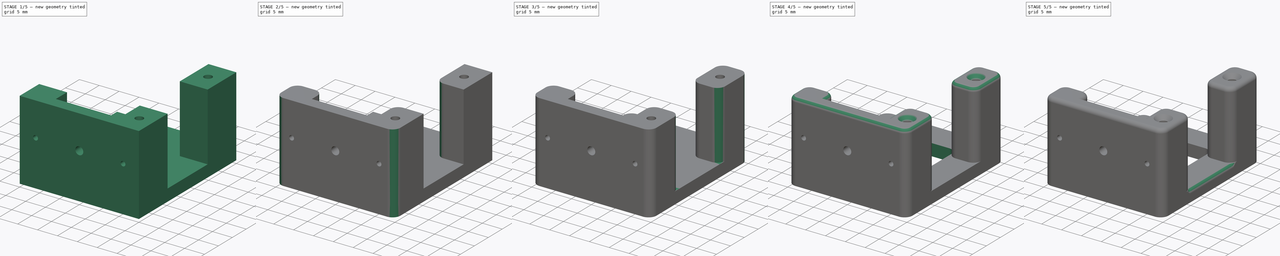
[diagram: build sequence overview — one tinted view per stage of 5, left to right]
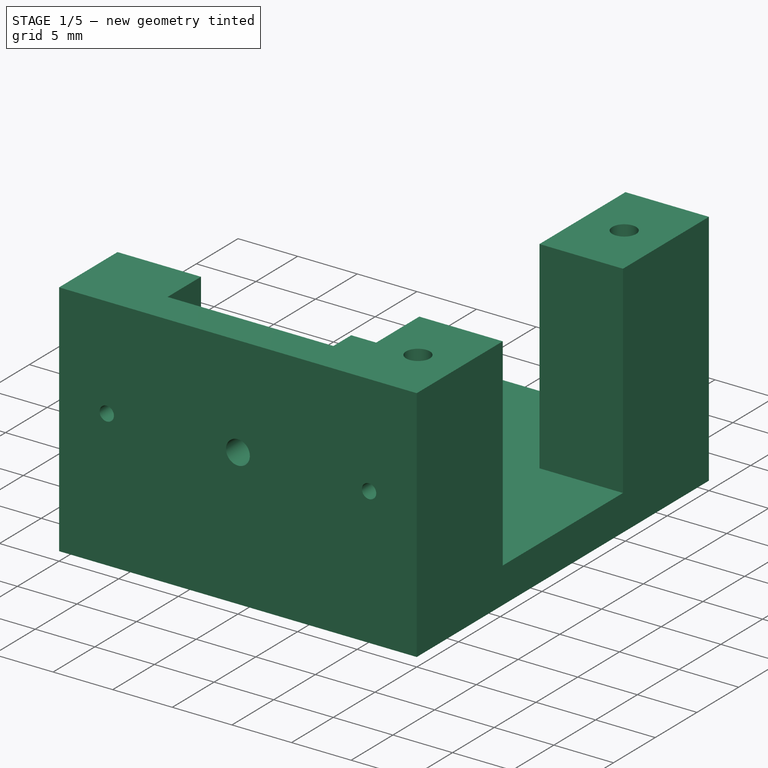
[diagram: stage 1 of 5 — iso view after this stage's code; geometry added in this stage tinted green]
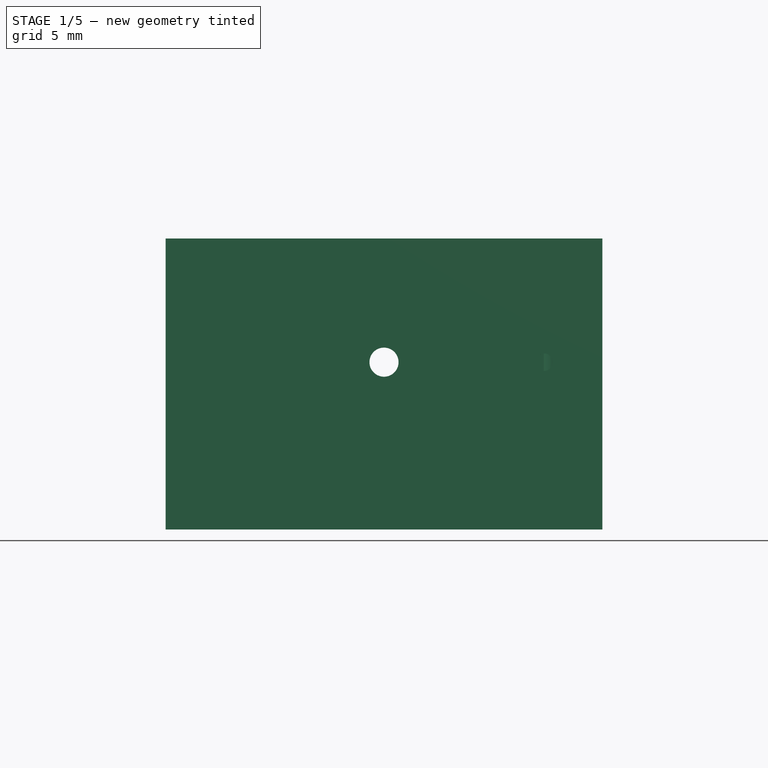
[diagram: stage 1 of 5 — front view after this stage's code; geometry added in this stage tinted green]
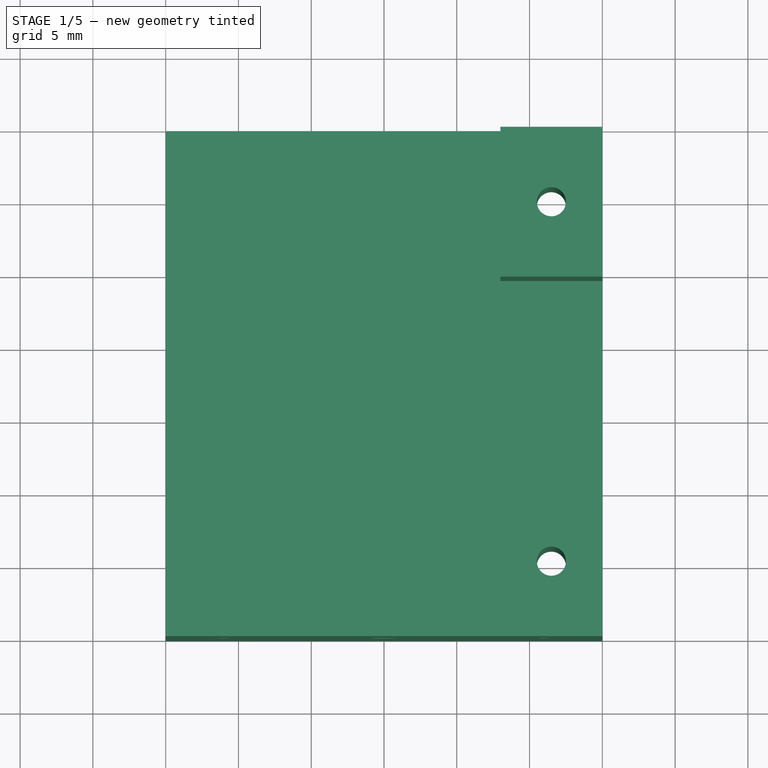
[diagram: stage 1 of 5 — top view after this stage's code; geometry added in this stage tinted green]
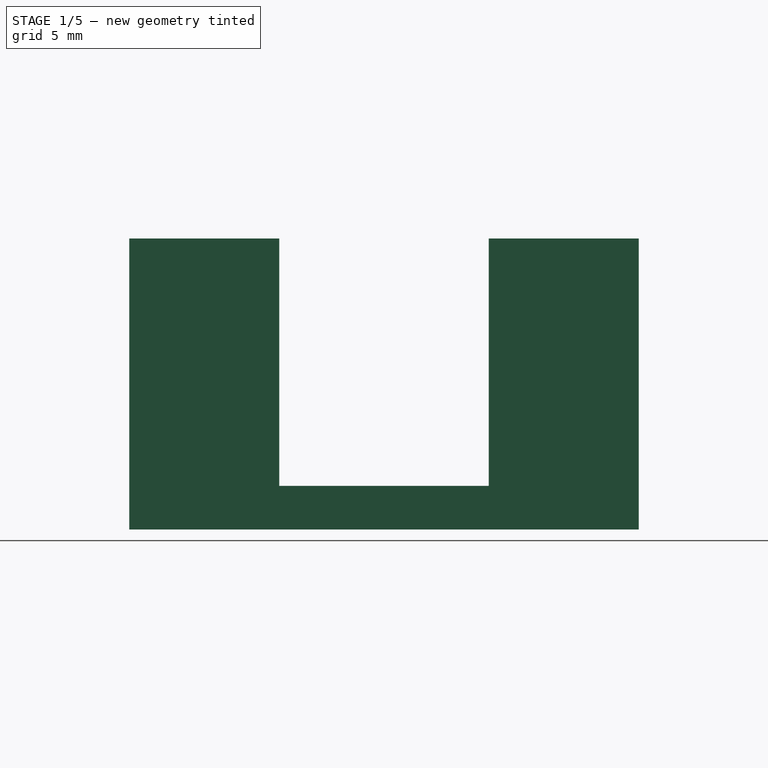
[diagram: stage 1 of 5 — right view after this stage's code; geometry added in this stage tinted green]
FCSTD DOCUMENT  (FreeCAD 0.14R3637 (Git))
Label: halter_buchse
License: CC-BY 3.0
LicenseURL: http://creativecommons.org/licenses/by/3.0/
objects: PartDesign::Fillet×19, Sketcher::SketchObject×6, PartDesign::Pocket×4, PartDesign::Pad×2, PartDesign::Chamfer×2
note: 39 computed .brp shape members not serialized (recipe doc carries the construction recipe); baked Part::Feature solids carry a one-line shape summary decoded from their .brp

FEATURE [Sketcher::SketchObject] Sketch  label="Base"
  sketch-geometry (10):
    g0: LineSegment StartX=0 StartY=0 StartZ=0 EndX=30 EndY=0 EndZ=0
    g1: LineSegment StartX=30 StartY=0 StartZ=0 EndX=30 EndY=35 EndZ=0
    g2: LineSegment StartX=30 StartY=35 StartZ=0 EndX=0 EndY=35 EndZ=0
    g3: LineSegment StartX=0 StartY=35 StartZ=0 EndX=0 EndY=0 EndZ=0
    g4: LineSegment [constr] StartX=26.5 StartY=35 StartZ=0 EndX=26.5 EndY=29.85 EndZ=0
    g5: LineSegment [constr] StartX=26.5 StartY=29.85 StartZ=0 EndX=26.5 EndY=5.15 EndZ=0
    g6: LineSegment [constr] StartX=26.5 StartY=5.15 StartZ=0 EndX=26.5 EndY=0 EndZ=0
    g7: LineSegment [constr] StartX=26.5 StartY=5.15 StartZ=0 EndX=30 EndY=5.15 EndZ=0
    g8: Circle CenterX=26.5 CenterY=29.85 CenterZ=0 NormalX=0 NormalY=0 NormalZ=1 Radius=1
    g9: Circle CenterX=26.5 CenterY=5.15 CenterZ=0 NormalX=0 NormalY=0 NormalZ=1 Radius=1
  constraints (28):
    c: Coincident(g0,g1)
    c: Coincident(g1,g2)
    c: Coincident(g2,g3)
    c: Coincident(g3,g0)
    c: Horizontal(g0)
    c: Horizontal(g2)
    c: Vertical(g1)
    c: Vertical(g3)
    c: DistanceY(g1) = 35
    c: Coincident(g0,g-1)
    c: Coincident(g4,g5)
    c: Vertical(g5)
    c: Coincident(g5,g6)
    c: Coincident(g5,g7)
    c: PointOnObject(g7,g1)
    c: PointOnObject(g6,g0)
    c: PointOnObject(g4,g2)
    c: Equal(g4,g6)
    c: Horizontal(g7)
    c: Vertical(g4)
    c: Vertical(g6)
    c: DistanceY(g5) = -24.7
    c: Coincident(g8,g4)
    c: Coincident(g9,g5)
    c: Radius(g9) = 1
    c: Radius(g8) = 1
    c: DistanceX(g7) = 3.5
    c: DistanceX(g2) = -30
FEATURE [PartDesign::Pad] Pad
  Length = 3
  Length2 = 100
  Sketch = -> Sketch
  Type = 0
FEATURE [Sketcher::SketchObject] Sketch001  label="Abstandshalter"
  ExternalGeometry = -> [Pad]
  Placement = pos=(0,0,3) rot=(0,0,1;0rad)
  Support = -> Pad [Face8]
  sketch-geometry (25):
    g0: LineSegment StartX=23 StartY=35 StartZ=0 EndX=30 EndY=35 EndZ=0
    g1: LineSegment StartX=30 StartY=35 StartZ=0 EndX=30 EndY=24.7 EndZ=0
    g2: LineSegment StartX=30 StartY=24.7 StartZ=0 EndX=23 EndY=24.7 EndZ=0
    g3: LineSegment StartX=23 StartY=24.7 StartZ=0 EndX=23 EndY=35 EndZ=0
    g4: LineSegment [constr] StartX=26.5 StartY=35 StartZ=0 EndX=26.5 EndY=29.85 EndZ=0
    g5: LineSegment [constr] StartX=26.5 StartY=29.85 StartZ=0 EndX=26.5 EndY=24.7 EndZ=0
    g6: LineSegment [constr] StartX=23 StartY=29.85 StartZ=0 EndX=26.5 EndY=29.85 EndZ=0
    g7: LineSegment [constr] StartX=26.5 StartY=29.85 StartZ=0 EndX=30 EndY=29.85 EndZ=0
    g8: LineSegment StartX=23 StartY=10.3 StartZ=0 EndX=30 EndY=10.3 EndZ=0
    g9: LineSegment StartX=30 StartY=10.3 StartZ=0 EndX=30 EndY=0 EndZ=0
    g10: LineSegment StartX=30 StartY=0 StartZ=0 EndX=23 EndY=0 EndZ=0
    g11: LineSegment [constr] StartX=26.5 StartY=10.3 StartZ=0 EndX=26.5 EndY=5.15 EndZ=0
    g12: LineSegment [constr] StartX=26.5 StartY=5.15 StartZ=0 EndX=26.5 EndY=0 EndZ=0
    g13: LineSegment [constr] StartX=23 StartY=5.15 StartZ=0 EndX=26.5 EndY=5.15 EndZ=0
    g14: LineSegment [constr] StartX=26.5 StartY=5.15 StartZ=0 EndX=30 EndY=5.15 EndZ=0
    g15: Circle CenterX=26.5 CenterY=29.85 CenterZ=0 NormalX=0 NormalY=0 NormalZ=1 Radius=1
    g16: Circle CenterX=26.5 CenterY=5.15 CenterZ=0 NormalX=0 NormalY=0 NormalZ=1 Radius=1
    g17: LineSegment StartX=7 StartY=7 StartZ=0 EndX=0 EndY=7 EndZ=0
    g18: LineSegment StartX=0 StartY=7 StartZ=0 EndX=0 EndY=0 EndZ=0
    g19: LineSegment StartX=0 StartY=0 StartZ=0 EndX=7 EndY=0 EndZ=0
    g20: LineSegment StartX=7 StartY=0 StartZ=0 EndX=23 EndY=0 EndZ=0
    g21: LineSegment StartX=23 StartY=3 StartZ=0 EndX=7 EndY=3 EndZ=0
    g22: LineSegment StartX=7 StartY=7 StartZ=0 EndX=7 EndY=3 EndZ=0
    g23: LineSegment StartX=23 StartY=10.3 StartZ=0 EndX=23 EndY=3 EndZ=0
    g24: LineSegment [constr] StartX=7 StartY=3 StartZ=0 EndX=7 EndY=0 EndZ=0
  constraints (69):
    c: Coincident(g0,g1)
    c: Coincident(g1,g2)
    c: Coincident(g2,g3)
    c: Coincident(g3,g0)
    c: Horizontal(g0)
    c: Horizontal(g2)
    c: Vertical(g1)
    c: Vertical(g3)
    c: Coincident(g4,g5)
    c: Coincident(g4,g-4)
    c: PointOnObject(g4,g0)
    c: PointOnObject(g5,g2)
    c: Coincident(g6,g7)
    c: PointOnObject(g7,g1)
    c: PointOnObject(g6,g3)
    c: Coincident(g6,g4)
    c: Vertical(g4)
    c: Vertical(g5)
    c: Horizontal(g6)
    c: Horizontal(g7)
    c: Equal(g6,g7)
    c: Equal(g4,g5)
    c: Coincident(g0,g-3)
    c: Coincident(g8,g9)
    c: Coincident(g9,g10)
    c: Horizontal(g8)
    c: Horizontal(g10)
    c: Vertical(g9)
    c: Coincident(g11,g12)
    c: Coincident(g13,g14)
    c: Coincident(g13,g11)
    c: Vertical(g11)
    c: Vertical(g12)
    c: Horizontal(g13)
    c: Horizontal(g14)
    c: Coincident(g11,g-5)
    c: PointOnObject(g11,g8)
    c: PointOnObject(g12,g10)
    c: PointOnObject(g14,g9)
    c: Equal(g11,g12)
    c: Equal(g13,g14)
    c: Coincident(g9,g-3)
    c: Coincident(g15,g4)
    c: Radius(g15) = 1
    c: Coincident(g16,g11)
    c: Radius(g16) = 1
    c: Coincident(g17,g18)
    c: Coincident(g18,g19)
    c: Horizontal(g17)
    c: Horizontal(g19)
    c: Vertical(g18)
    c: Equal(g17,g8)
    c: Coincident(g18,g-1)
    c: Horizontal(g20)
    c: Horizontal(g21)
    c: Coincident(g20,g19)
    c: Coincident(g20,g10)
    c: Coincident(g23,g8)
    c: Coincident(g23,g21)
    c: Vertical(g23)
    c: PointOnObject(g13,g23)
    c: Coincident(g22,g21)
    c: Coincident(g22,g17)
    c: Vertical(g22)
    c: Equal(g18,g17)
    c: Coincident(g24,g19)
    c: Coincident(g24,g21)
    c: Vertical(g24)
    c: DistanceY(g24) = -3
FEATURE [PartDesign::Pad] Pad001
  Length = 17
  Length2 = 100
  Sketch = -> Sketch001
  Type = 0
FEATURE [Sketcher::SketchObject] Sketch002  label="DIN_Center"
  ExternalGeometry = -> [Pad001]
  Placement = pos=(0,0,0) rot=(1,0,0;1.5708rad)
  Support = -> Pad001 [Face9]
  sketch-geometry (5):
    g0: LineSegment [constr] StartX=7 StartY=20 StartZ=0 EndX=15 EndY=11.5 EndZ=0
    g1: LineSegment [constr] StartX=15 StartY=11.5 StartZ=0 EndX=23 EndY=3 EndZ=0
    g2: LineSegment [constr] StartX=7 StartY=3 StartZ=0 EndX=15 EndY=11.5 EndZ=0
    g3: LineSegment [constr] StartX=15 StartY=11.5 StartZ=0 EndX=23 EndY=20 EndZ=0
    g4: Circle CenterX=15 CenterY=11.5 CenterZ=0 NormalX=0 NormalY=0 NormalZ=1 Radius=1
  constraints (11):
    c: Coincident(g0,g1)
    c: Coincident(g2,g3)
    c: Coincident(g2,g0)
    c: Coincident(g0,g-3)
    c: Coincident(g3,g-4)
    c: Coincident(g1,g-4)
    c: Coincident(g2,g-3)
    c: Equal(g3,g2)
    c: Equal(g0,g1)
    c: Coincident(g4,g0)
    c: Radius(g4) = 1
FEATURE [PartDesign::Pocket] Pocket
  Length = 3
  Sketch = -> Sketch002
  Type = 0
FEATURE [Sketcher::SketchObject] Sketch003  label="din_links"
  Placement = pos=(0,0,0) rot=(1,0,0;1.5708rad)
  Support = -> Pocket [Face2]
  sketch-geometry (5):
    g0: LineSegment [constr] StartX=7 StartY=20 StartZ=0 EndX=7 EndY=11.5 EndZ=0
    g1: LineSegment [constr] StartX=7 StartY=11.5 StartZ=0 EndX=7 EndY=3 EndZ=0
    g2: LineSegment [constr] StartX=4 StartY=11.5 StartZ=0 EndX=7 EndY=11.5 EndZ=0
    g3: LineSegment [constr] StartX=4 StartY=11.5 StartZ=0 EndX=0 EndY=11.5 EndZ=0
    g4: Circle CenterX=4 CenterY=11.5 CenterZ=0 NormalX=0 NormalY=0 NormalZ=1 Radius=0.6
  constraints (11):
    c: Coincident(g0,g1)
    c: Vertical(g0)
    c: Vertical(g1)
    c: Coincident(g2,g0)
    c: Horizontal(g2)
    c: Equal(g1,g0)
    c: Coincident(g3,g2)
    c: Horizontal(g3)
    c: Coincident(g4,g2)
    c: Radius(g4) = 0.6
    c: DistanceX(g2) = 3
FEATURE [PartDesign::Pocket] Pocket001
  Length = 6
  Sketch = -> Sketch003
  Type = 0
FEATURE [Sketcher::SketchObject] Sketch004  label="din_rechts"
  Placement = pos=(0,0,0) rot=(1,0,0;1.5708rad)
  Support = -> Pocket001 [Face2]
  sketch-geometry (5):
    g0: LineSegment [constr] StartX=23 StartY=20 StartZ=0 EndX=23 EndY=11.5 EndZ=0
    g1: LineSegment [constr] StartX=23 StartY=11.5 StartZ=0 EndX=23 EndY=3 EndZ=0
    g2: LineSegment [constr] StartX=23 StartY=11.5 StartZ=0 EndX=26 EndY=11.5 EndZ=0
    g3: LineSegment [constr] StartX=26 StartY=11.5 StartZ=0 EndX=30 EndY=11.5 EndZ=0
    g4: Circle CenterX=26 CenterY=11.5 CenterZ=0 NormalX=0 NormalY=0 NormalZ=1 Radius=0.6
  constraints (11):
    c: Coincident(g0,g1)
    c: Coincident(g2,g0)
    c: Vertical(g1)
    c: Vertical(g0)
    c: Equal(g0,g1)
    c: Horizontal(g2)
    c: Coincident(g3,g2)
    c: Horizontal(g3)
    c: DistanceX(g2) = 3
    c: Radius(g4) = 0.6
    c: Coincident(g4,g2)
FEATURE [PartDesign::Pocket] Pocket002
  Length = 6
  Sketch = -> Sketch004
  Type = 0
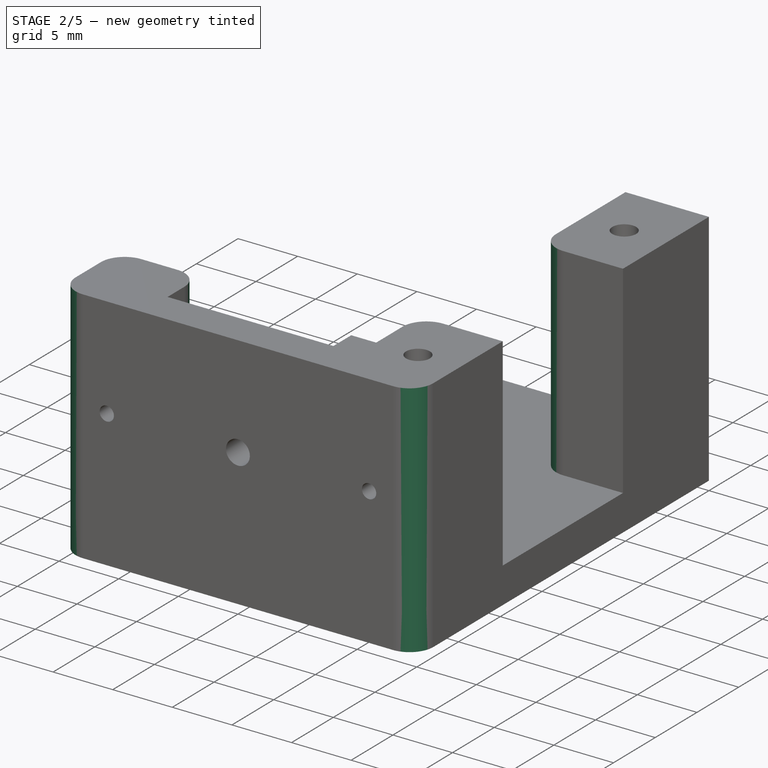
[diagram: stage 2 of 5 — iso view after this stage's code; geometry added in this stage tinted green]
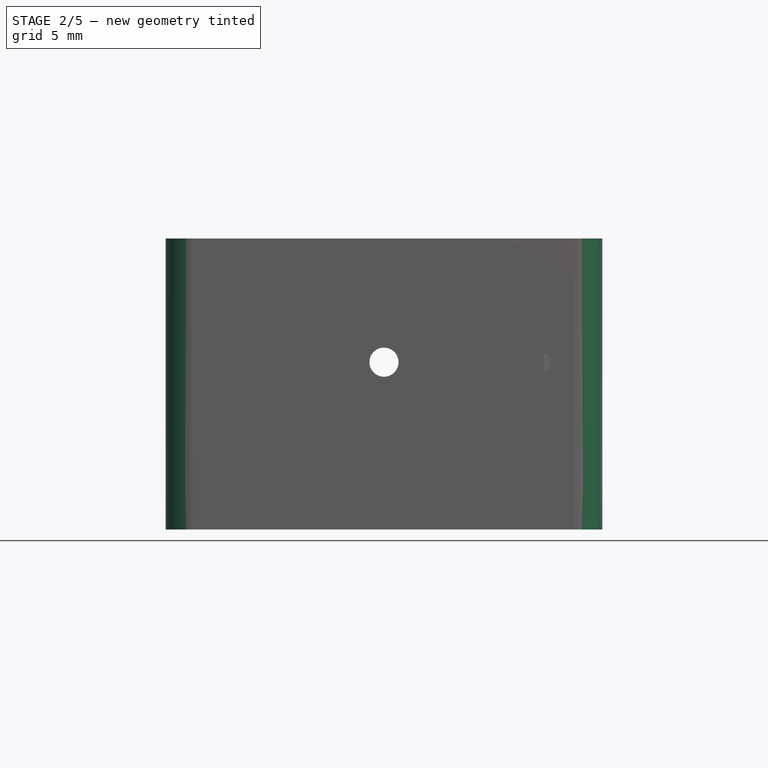
[diagram: stage 2 of 5 — front view after this stage's code; geometry added in this stage tinted green]
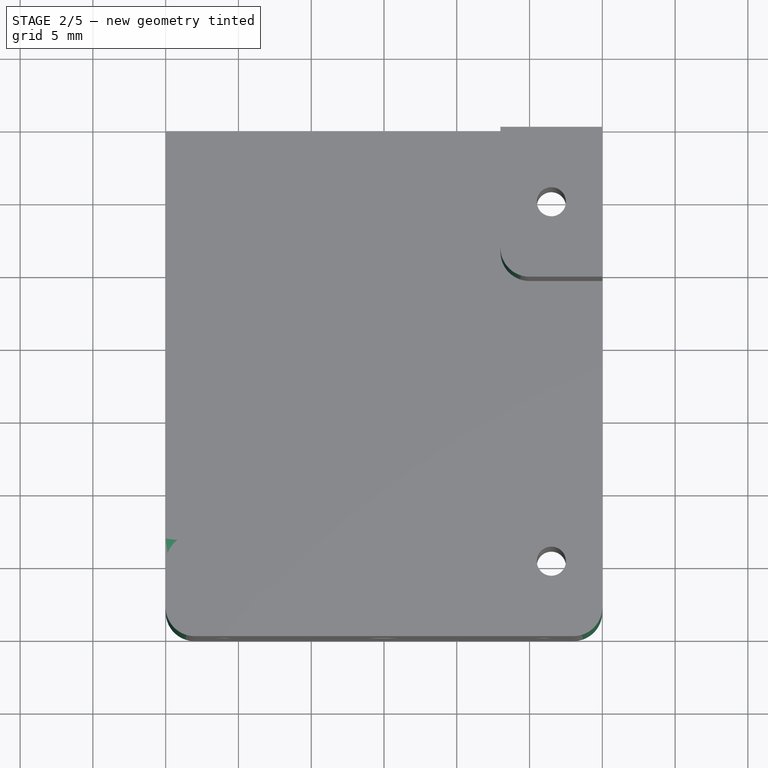
[diagram: stage 2 of 5 — top view after this stage's code; geometry added in this stage tinted green]
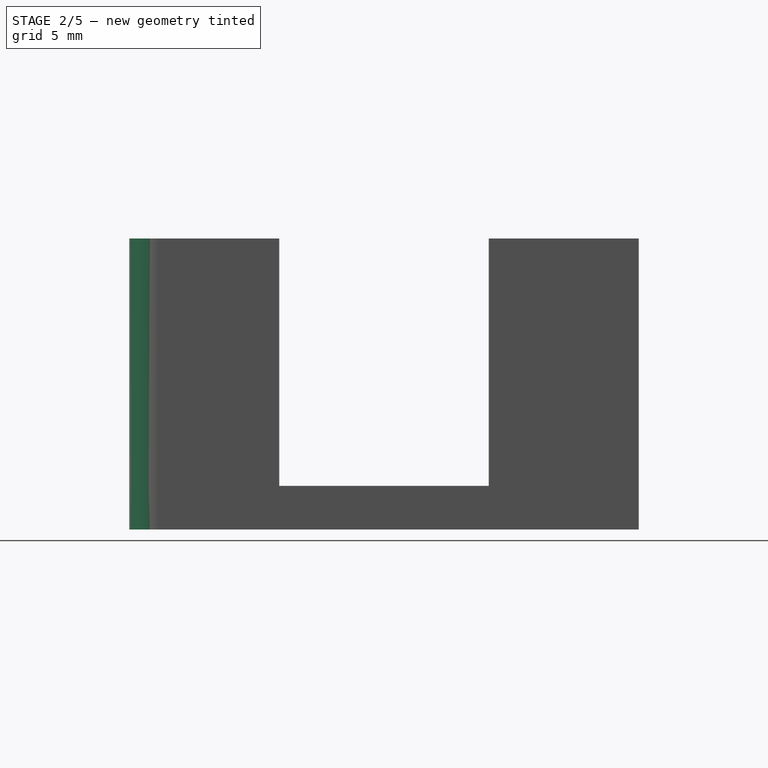
[diagram: stage 2 of 5 — right view after this stage's code; geometry added in this stage tinted green]
FEATURE [PartDesign::Fillet] Fillet
  Base = -> Pocket002 [Edge32]
  Radius = 2
FEATURE [PartDesign::Fillet] Fillet001
  Base = -> Fillet [Edge32]
  Radius = 2
FEATURE [PartDesign::Fillet] Fillet002
  Base = -> Fillet001 [Edge45]
  Radius = 2
FEATURE [PartDesign::Fillet] Fillet003
  Base = -> Fillet002 [Edge46]
  Radius = 2
FEATURE [PartDesign::Fillet] Fillet004
  Base = -> Fillet003 [Edge30]
  Radius = 2
FEATURE [PartDesign::Fillet] Fillet005
  Base = -> Fillet004 [Edge36]
  Radius = 2
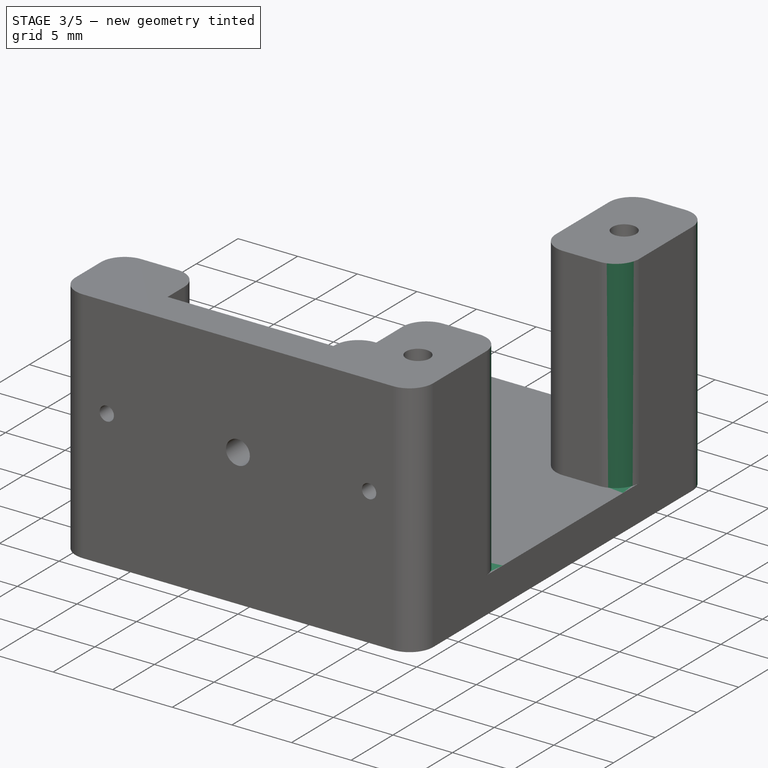
[diagram: stage 3 of 5 — iso view after this stage's code; geometry added in this stage tinted green]
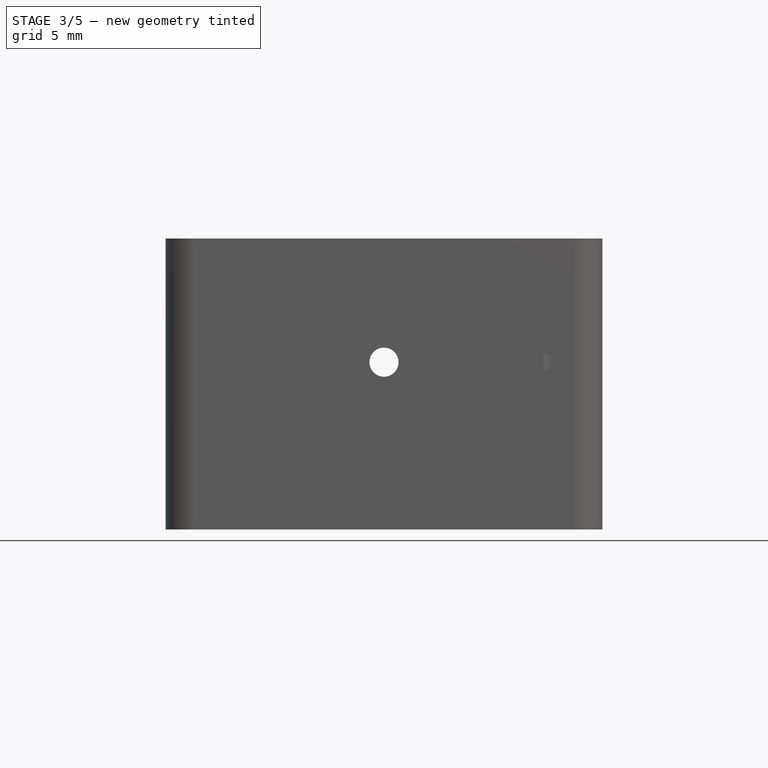
[diagram: stage 3 of 5 — front view after this stage's code; geometry added in this stage tinted green]
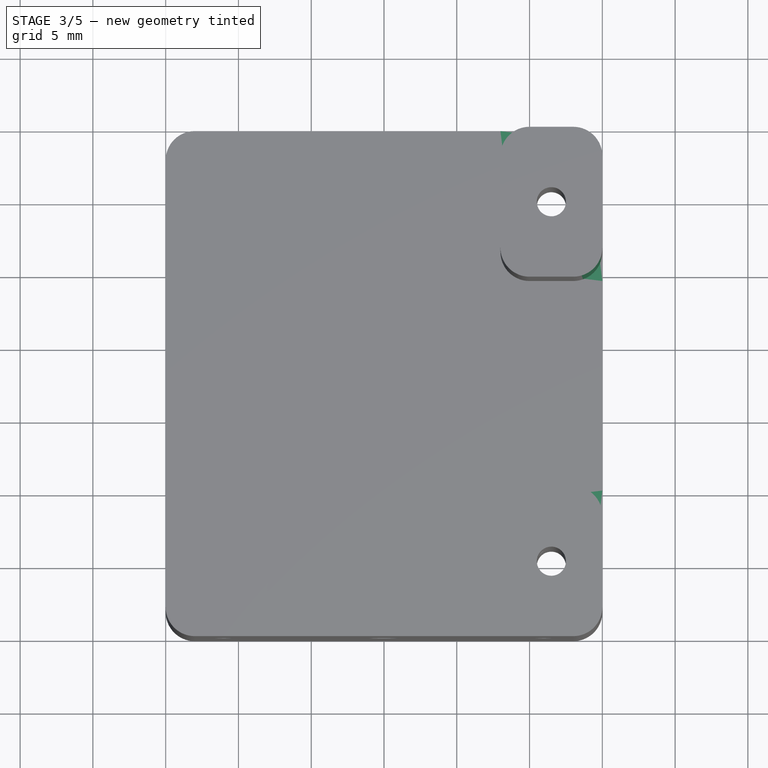
[diagram: stage 3 of 5 — top view after this stage's code; geometry added in this stage tinted green]
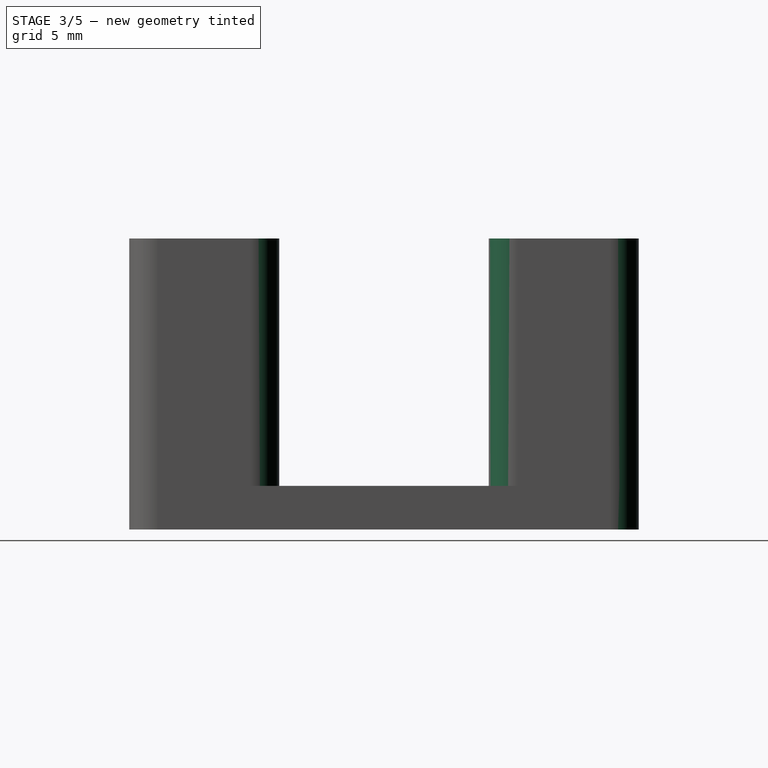
[diagram: stage 3 of 5 — right view after this stage's code; geometry added in this stage tinted green]
FEATURE [PartDesign::Fillet] Fillet006
  Base = -> Fillet005 [Edge33]
  Radius = 2
FEATURE [PartDesign::Fillet] Fillet007
  Base = -> Fillet006 [Edge24]
  Radius = 2
FEATURE [PartDesign::Fillet] Fillet008
  Base = -> Fillet007 [Edge62]
  Radius = 2
FEATURE [PartDesign::Fillet] Fillet009
  Base = -> Fillet008 [Edge52]
  Radius = 2
FEATURE [PartDesign::Fillet] Fillet010
  Base = -> Fillet009 [Edge38]
  Radius = 2
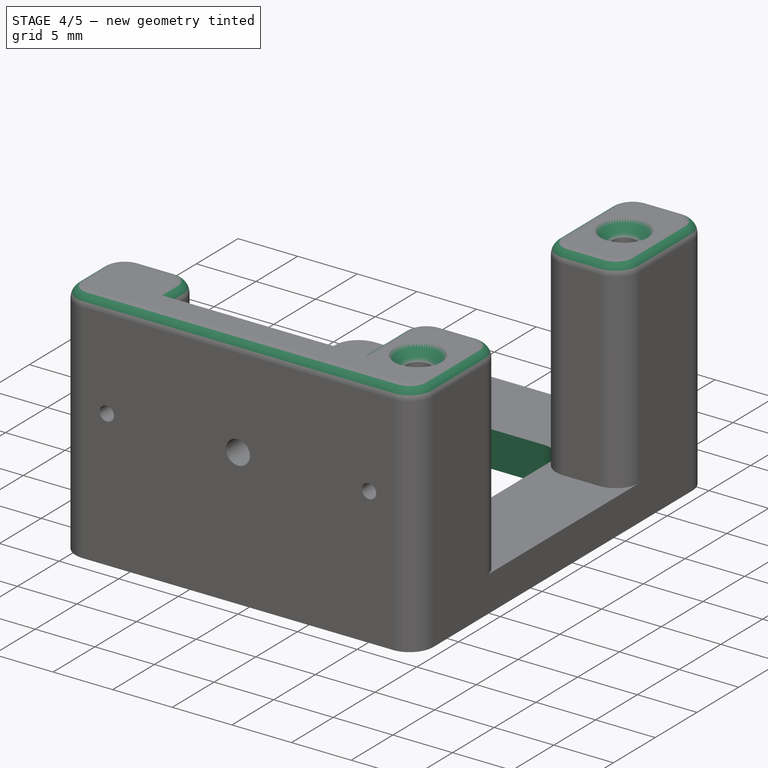
[diagram: stage 4 of 5 — iso view after this stage's code; geometry added in this stage tinted green]
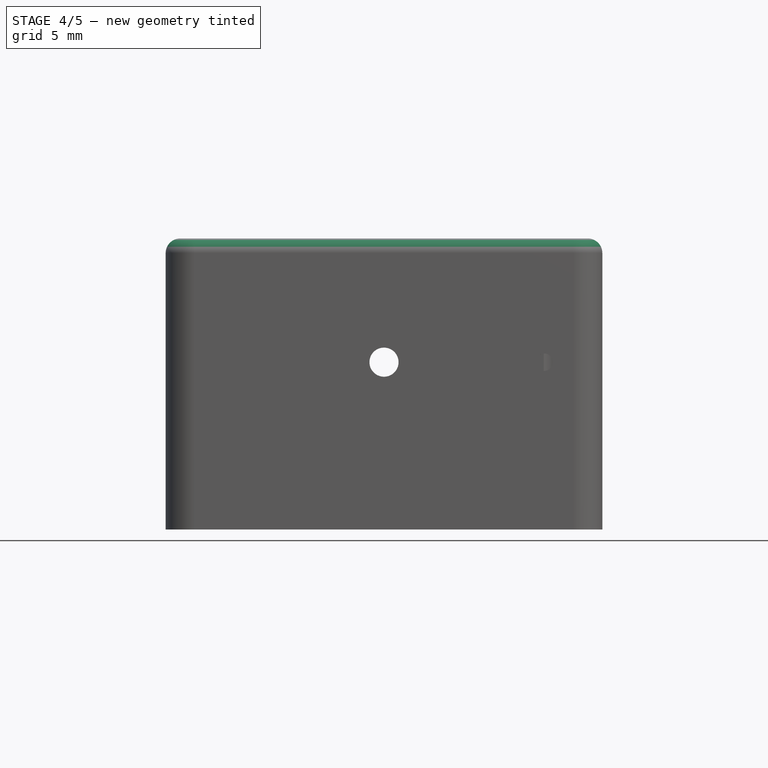
[diagram: stage 4 of 5 — front view after this stage's code; geometry added in this stage tinted green]
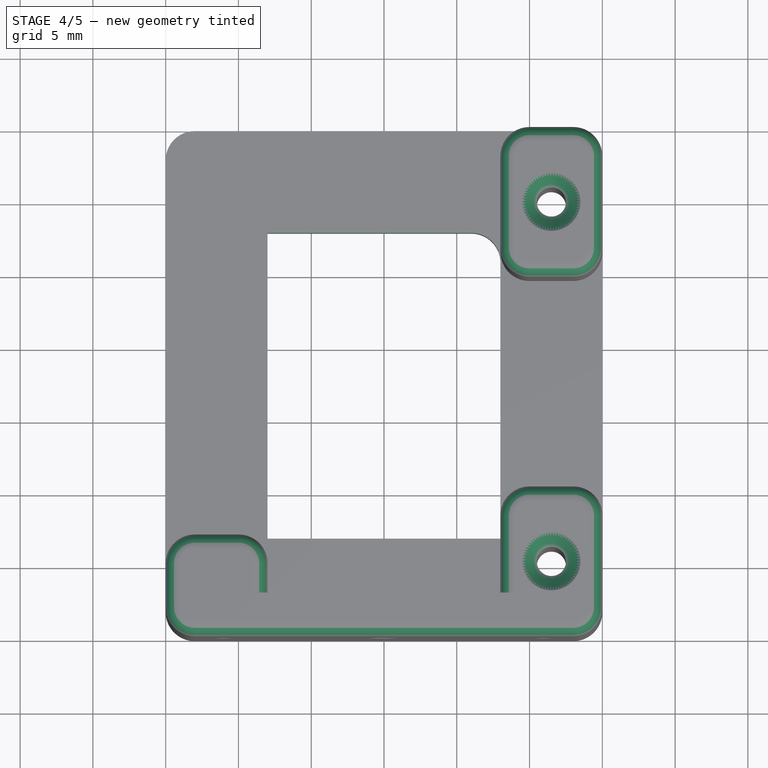
[diagram: stage 4 of 5 — top view after this stage's code; geometry added in this stage tinted green]
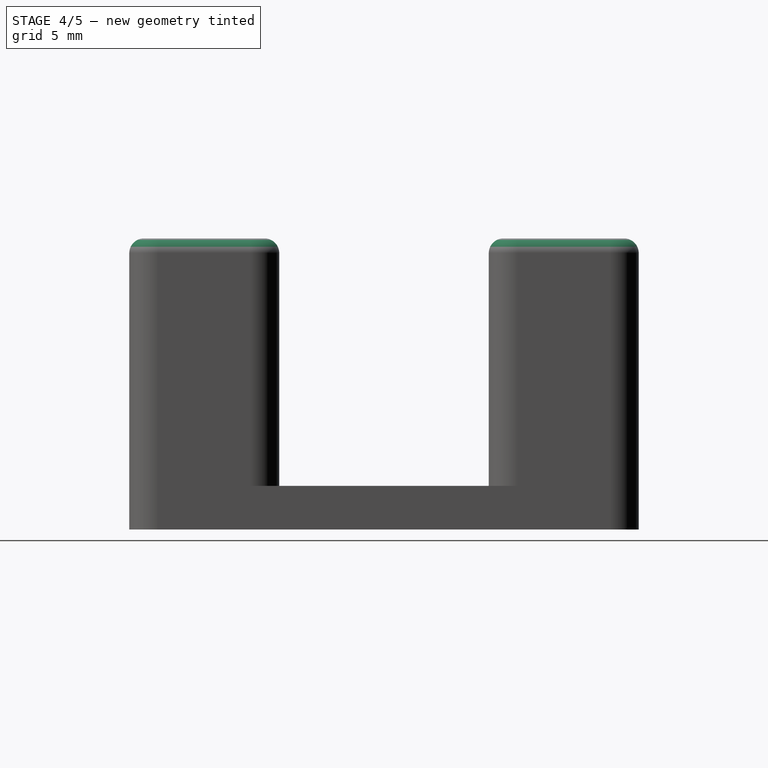
[diagram: stage 4 of 5 — right view after this stage's code; geometry added in this stage tinted green]
FEATURE [PartDesign::Chamfer] Chamfer
  Base = -> Fillet010 [Edge75]
  Size = 1
FEATURE [PartDesign::Chamfer] Chamfer001
  Base = -> Chamfer [Edge118]
  Size = 1
FEATURE [PartDesign::Fillet] Fillet011
  Base = -> Chamfer001 [Edge94]
  Radius = 1
FEATURE [PartDesign::Fillet] Fillet012
  Base = -> Fillet011 [Edge75]
  Radius = 1
FEATURE [Sketcher::SketchObject] Sketch005  label="ausschnitt"
  ExternalGeometry = -> [Fillet012]
  Placement = pos=(0,0,0) rot=(1,0,0;3.14159rad)
  Support = -> Fillet012 [Face13]
  sketch-geometry (8):
    g0: LineSegment StartX=7 StartY=-28 StartZ=0 EndX=23 EndY=-28 EndZ=0
    g1: LineSegment StartX=23 StartY=-28 StartZ=0 EndX=23 EndY=-7 EndZ=0
    g2: LineSegment StartX=23 StartY=-7 StartZ=0 EndX=7 EndY=-7 EndZ=0
    g3: LineSegment StartX=7 StartY=-7 StartZ=0 EndX=7 EndY=-28 EndZ=0
    g4: LineSegment [constr] StartX=23 StartY=-7 StartZ=0 EndX=30 EndY=-7 EndZ=0
    g5: LineSegment [constr] StartX=7 StartY=-28 StartZ=0 EndX=0 EndY=-28 EndZ=0
    g6: LineSegment [constr] StartX=7 StartY=-28 StartZ=0 EndX=7 EndY=-35 EndZ=0
    g7: LineSegment [constr] StartX=7 StartY=-7 StartZ=0 EndX=7 EndY=0 EndZ=0
  constraints (24):
    c: Coincident(g0,g1)
    c: Coincident(g1,g2)
    c: Coincident(g2,g3)
    c: Coincident(g3,g0)
    c: Horizontal(g0)
    c: Horizontal(g2)
    c: Vertical(g1)
    c: Vertical(g3)
    c: Coincident(g4,g1)
    c: PointOnObject(g4,g-3)
    c: Horizontal(g4)
    c: DistanceX(g4) = 7
    c: PointOnObject(g5,g-4)
    c: Coincident(g5,g0)
    c: Horizontal(g5)
    c: Coincident(g6,g0)
    c: PointOnObject(g6,g-6)
    c: Coincident(g7,g2)
    c: PointOnObject(g7,g-5)
    c: DistanceY(g6) = -7
    c: Vertical(g6)
    c: DistanceX(g5) = -7
    c: Vertical(g7)
    c: DistanceY(g7) = 7
FEATURE [PartDesign::Pocket] Pocket003
  Length = 3
  Sketch = -> Sketch005
  Type = 0
FEATURE [PartDesign::Fillet] Fillet013
  Base = -> Pocket003 [Edge66]
  Radius = 2
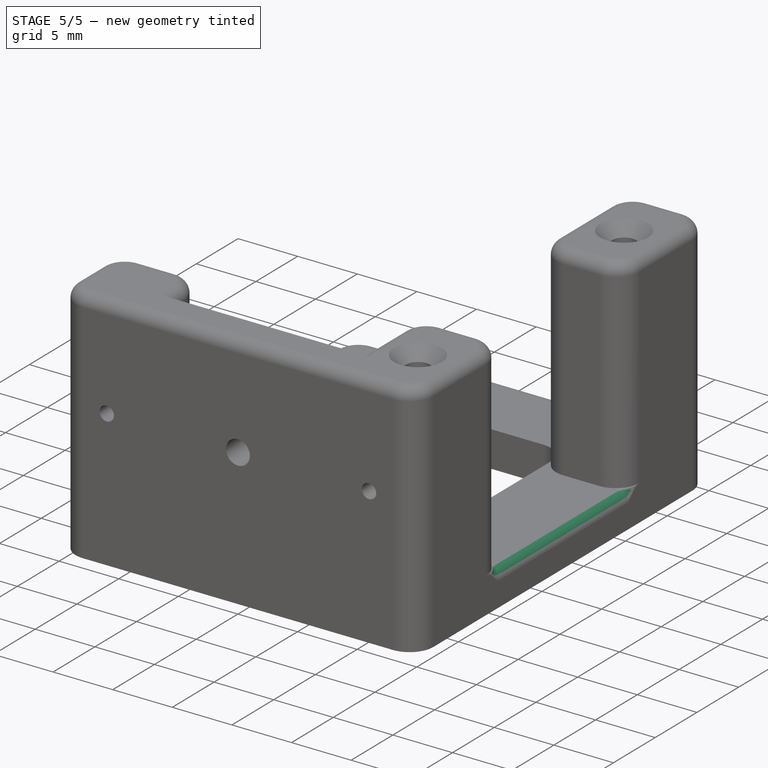
[diagram: stage 5 of 5 — iso view after this stage's code; geometry added in this stage tinted green]
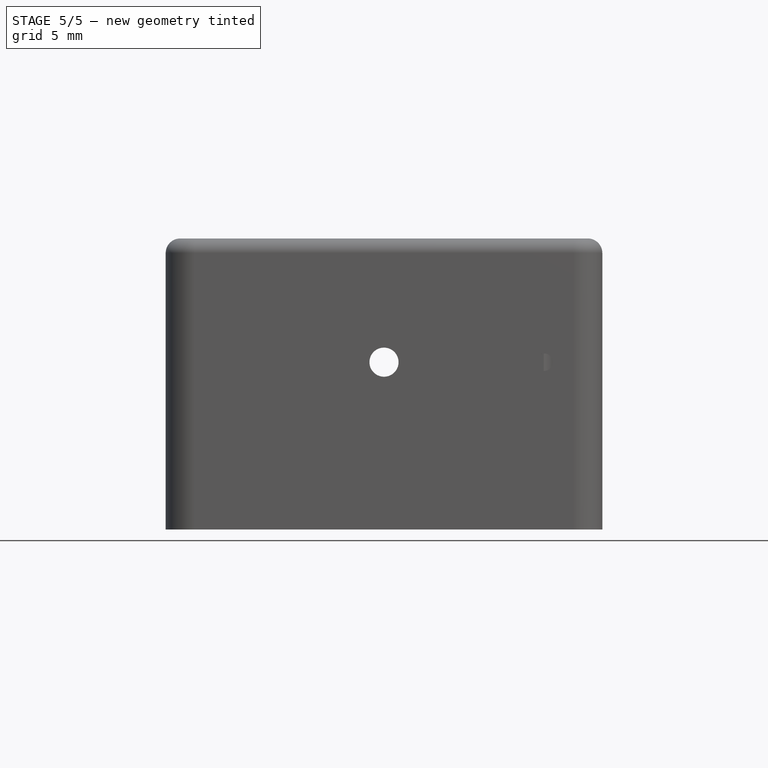
[diagram: stage 5 of 5 — front view after this stage's code; geometry added in this stage tinted green]
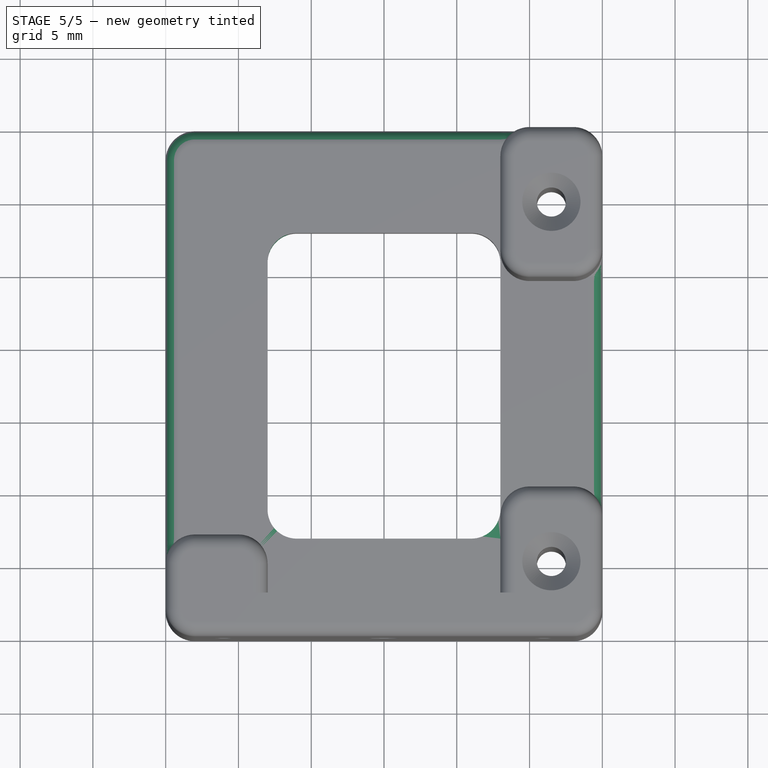
[diagram: stage 5 of 5 — top view after this stage's code; geometry added in this stage tinted green]
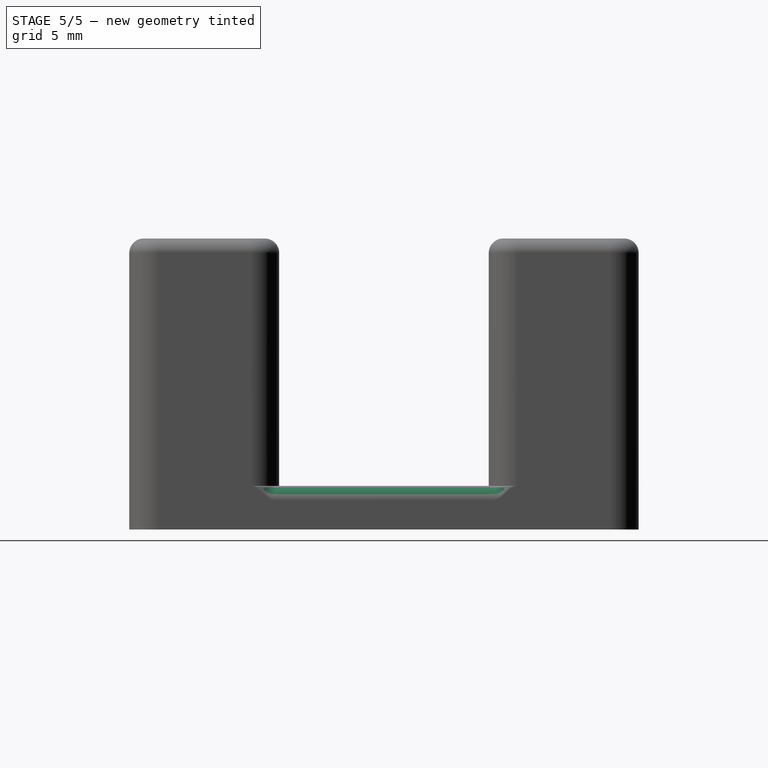
[diagram: stage 5 of 5 — right view after this stage's code; geometry added in this stage tinted green]
FEATURE [PartDesign::Fillet] Fillet014
  Base = -> Fillet013 [Edge17]
  Radius = 2
FEATURE [PartDesign::Fillet] Fillet015
  Base = -> Fillet014 [Edge24]
  Radius = 2
FEATURE [PartDesign::Fillet] Fillet016
  Base = -> Fillet015 [Edge25]
  Radius = 2
FEATURE [PartDesign::Fillet] Fillet017
  Base = -> Fillet016 [Edge42]
  Radius = 1
FEATURE [PartDesign::Fillet] Fillet018
  Base = -> Fillet017 [Edge42]
  Radius = 1
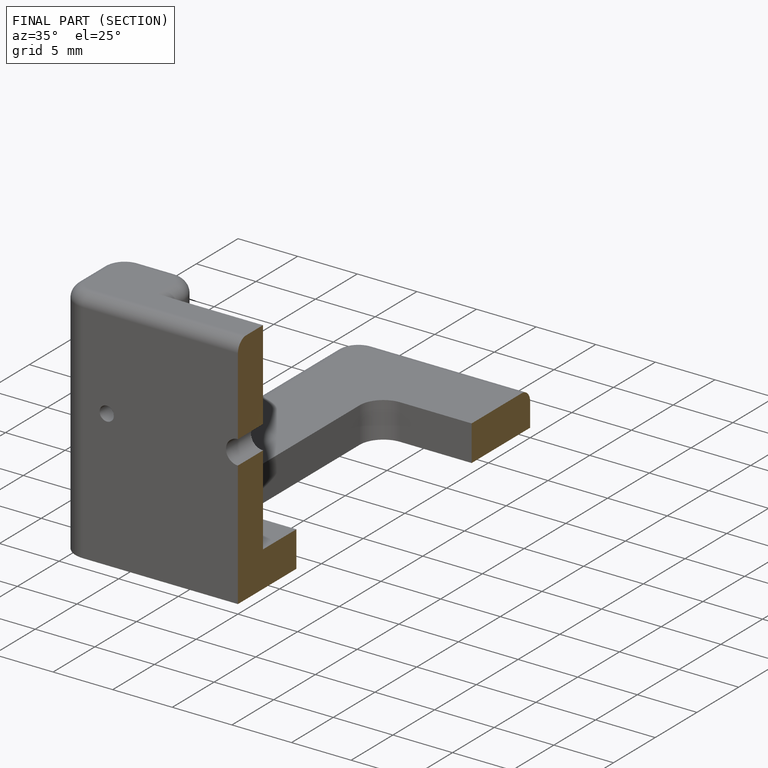
[diagram: finished part — half-section view (interior)]
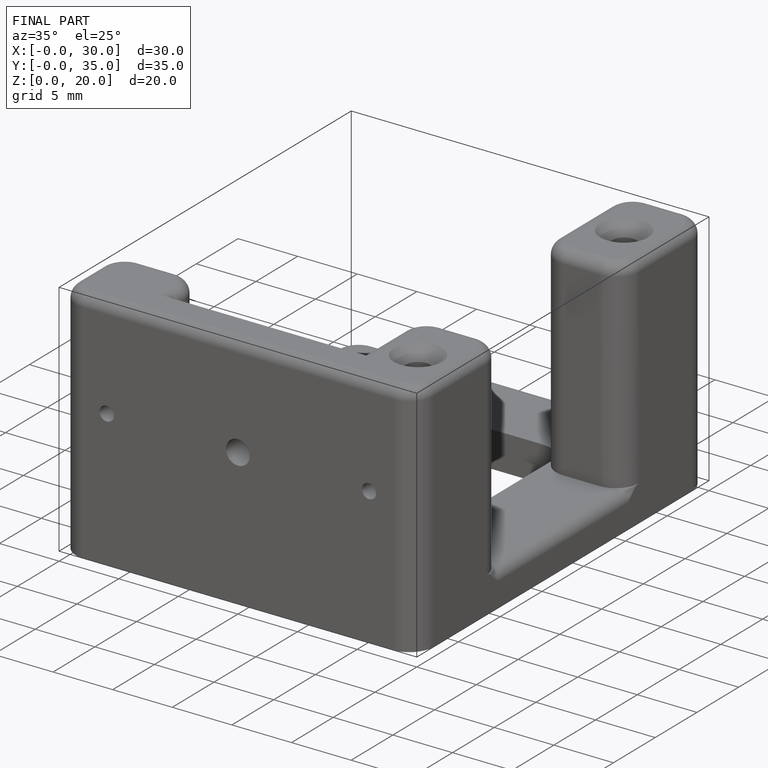
[diagram: finished part — iso view with bounding-box wireframe]
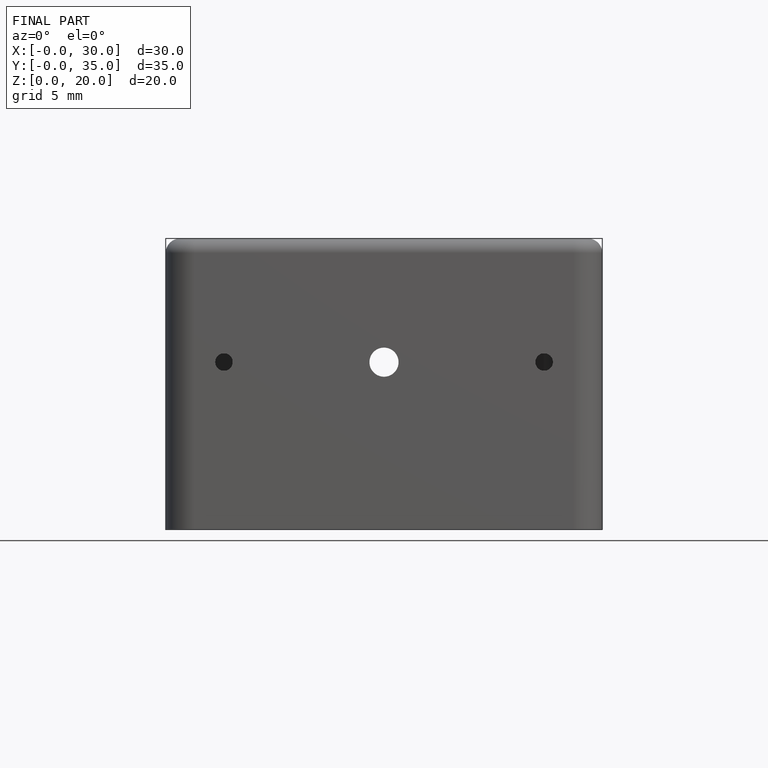
[diagram: finished part — front view with bounding-box wireframe]
